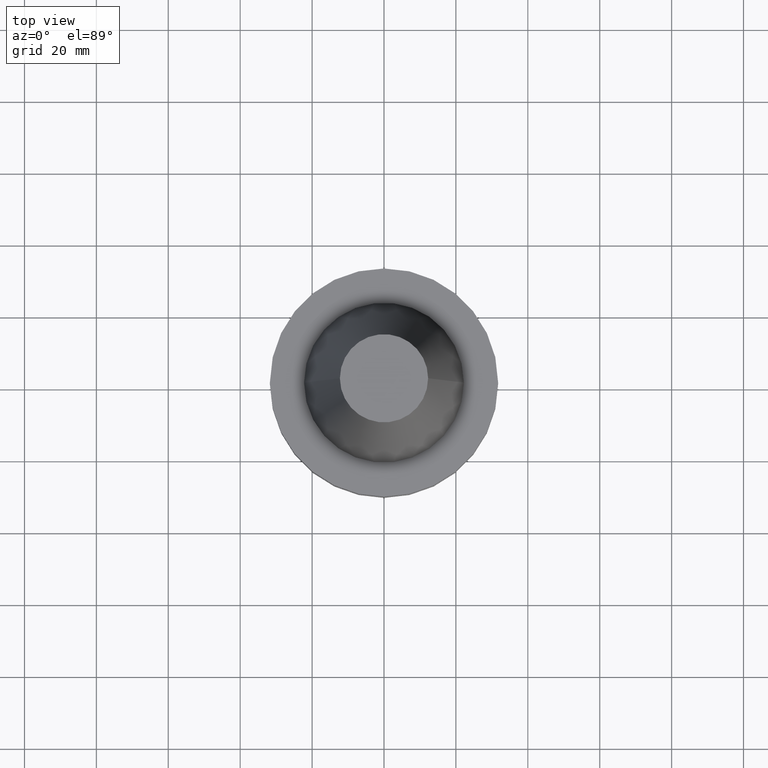
[diagram: clean part render]
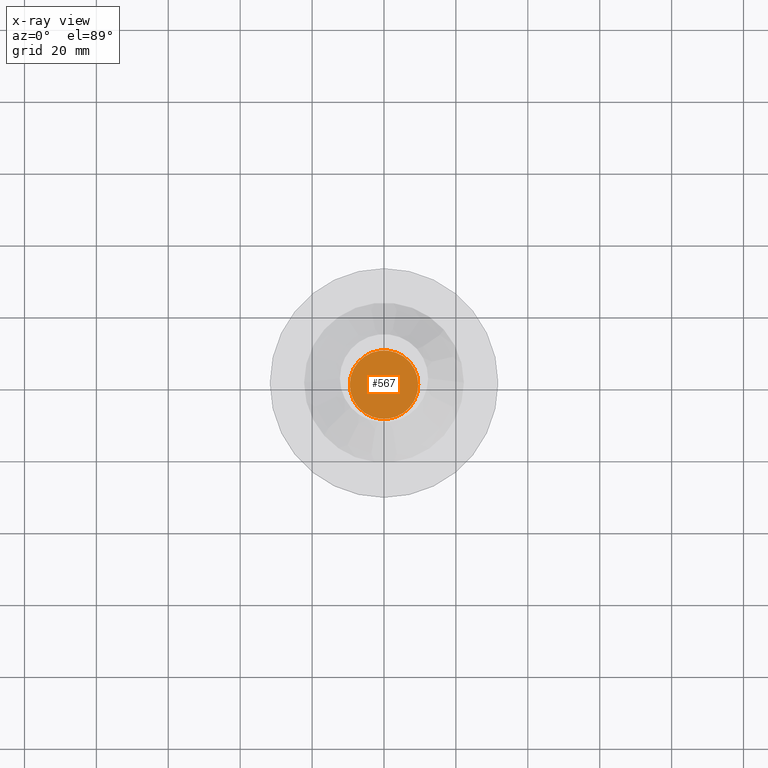
[diagram: x-ray — body ghosted, one internal face saturated and labeled with its STEP entity id]
A machine part, top view, then the same camera in x-ray: the body is ghosted and one INTERNAL B-rep face — a face not visible from any outside direction — is saturated and labeled: STEP entity #567.
In plain terms, the highlighted planar face has unit normal (0, -0, 1).
Its self-contained STEP definition (entity closure, byte-faithful):
#17 = CARTESIAN_POINT ( 'NONE',  ( 0.000000000000000000, 0.000000000000000000, -35.04999999999999716 ) ) ;
#19 = DIRECTION ( 'NONE',  ( 1.000000000000000000, 0.000000000000000000, 0.000000000000000000 ) ) ;
#44 = PLANE ( 'NONE',  #514 ) ;
#65 = EDGE_CURVE ( 'NONE', #248, #524, #175, .T. ) ;
#75 = DIRECTION ( 'NONE',  ( -0.000000000000000000, -0.000000000000000000, 1.000000000000000000 ) ) ;
#109 = EDGE_CURVE ( 'NONE', #524, #248, #530, .T. ) ;
#141 = DIRECTION ( 'NONE',  ( 1.000000000000000000, 0.000000000000000000, 0.000000000000000000 ) ) ;
#166 = CARTESIAN_POINT ( 'NONE',  ( 9.525000000000002132, 0.000000000000000000, -35.04999999999999716 ) ) ;
#169 = CARTESIAN_POINT ( 'NONE',  ( 0.000000000000000000, 0.000000000000000000, -35.04999999999999716 ) ) ;
#175 = CIRCLE ( 'NONE', #425, 9.525000000000002132 ) ;
#233 = CARTESIAN_POINT ( 'NONE',  ( 0.000000000000000000, 22.22499999999999787, -35.04999999999999716 ) ) ;
#248 = VERTEX_POINT ( 'NONE', #166 ) ;
#295 = DIRECTION ( 'NONE',  ( 1.000000000000000000, 0.000000000000000000, 0.000000000000000000 ) ) ;
#346 = CARTESIAN_POINT ( 'NONE',  ( -9.525000000000002132, 1.166476076187854219E-15, -35.04999999999999716 ) ) ;
#367 = EDGE_LOOP ( 'NONE', ( #726, #406 ) ) ;
#388 = AXIS2_PLACEMENT_3D ( 'NONE', #169, #408, #19 ) ;
#406 = ORIENTED_EDGE ( 'NONE', *, *, #109, .F. ) ;
#408 = DIRECTION ( 'NONE',  ( -0.000000000000000000, -0.000000000000000000, 1.000000000000000000 ) ) ;
#425 = AXIS2_PLACEMENT_3D ( 'NONE', #17, #75, #141 ) ;
#514 = AXIS2_PLACEMENT_3D ( 'NONE', #233, #535, #295 ) ;
#524 = VERTEX_POINT ( 'NONE', #346 ) ;
#530 = CIRCLE ( 'NONE', #388, 9.525000000000002132 ) ;
#535 = DIRECTION ( 'NONE',  ( 0.000000000000000000, -0.000000000000000000, 1.000000000000000000 ) ) ;
#545 = FACE_OUTER_BOUND ( 'NONE', #367, .T. ) ;
#567 = ADVANCED_FACE ( 'NONE', ( #545 ), #44, .F. ) ;
#726 = ORIENTED_EDGE ( 'NONE', *, *, #65, .F. ) ;